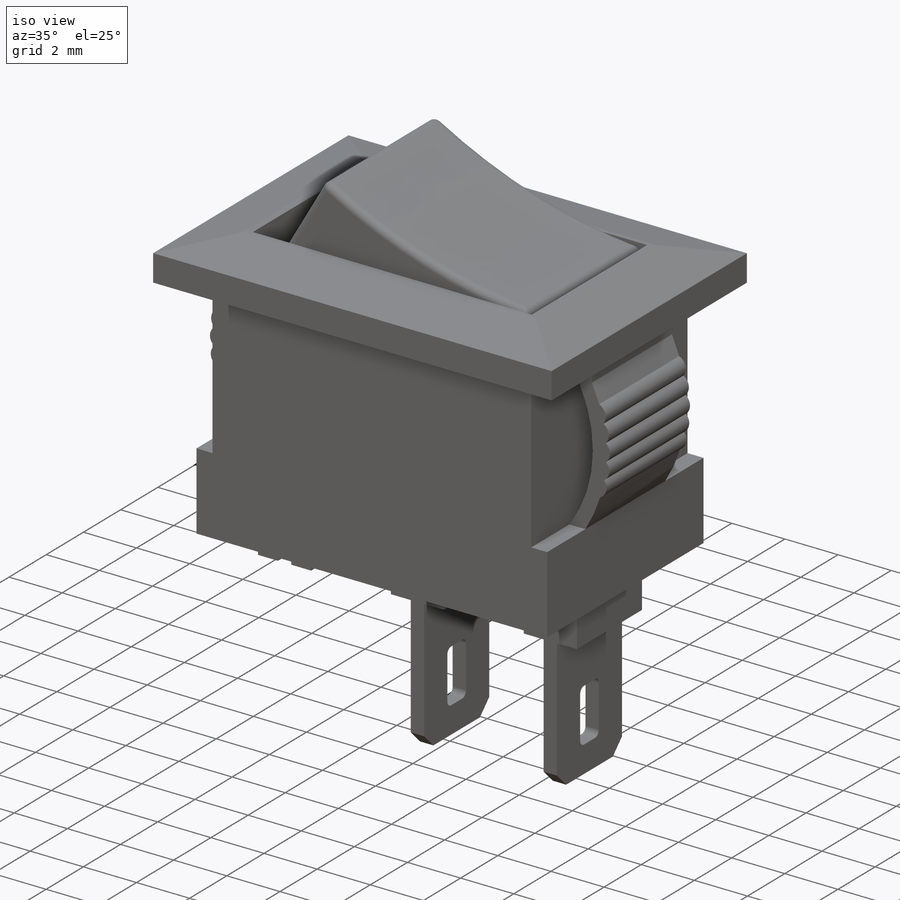
[diagram: iso view]
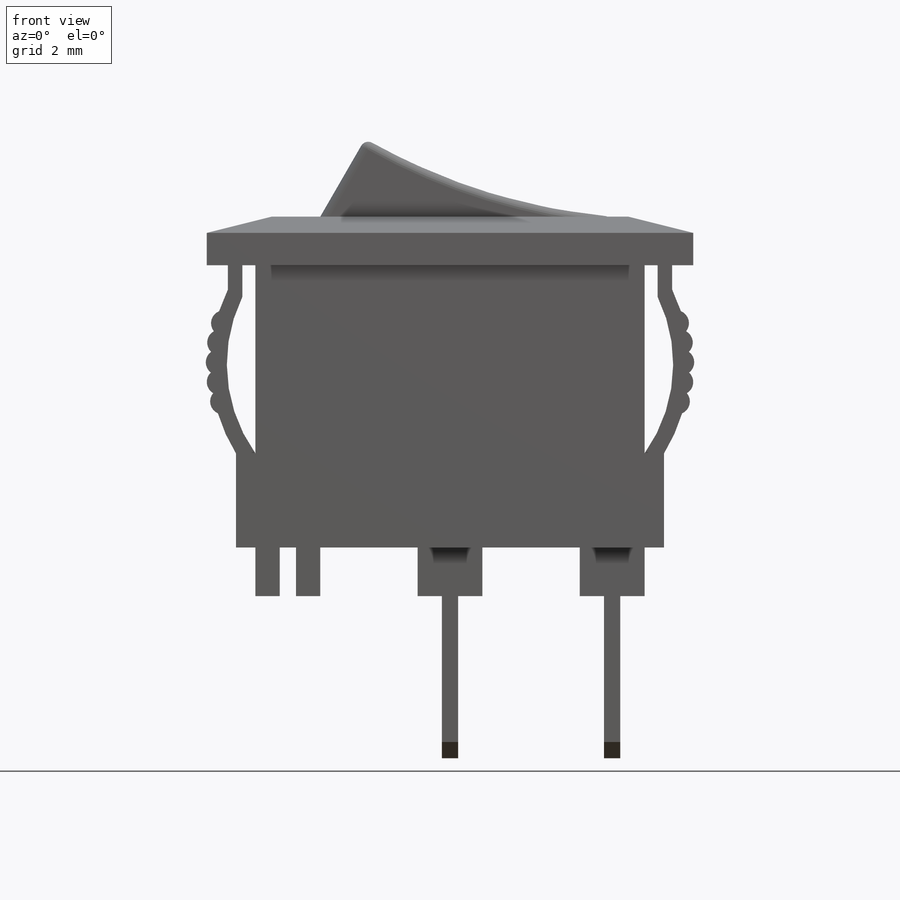
[diagram: front view]
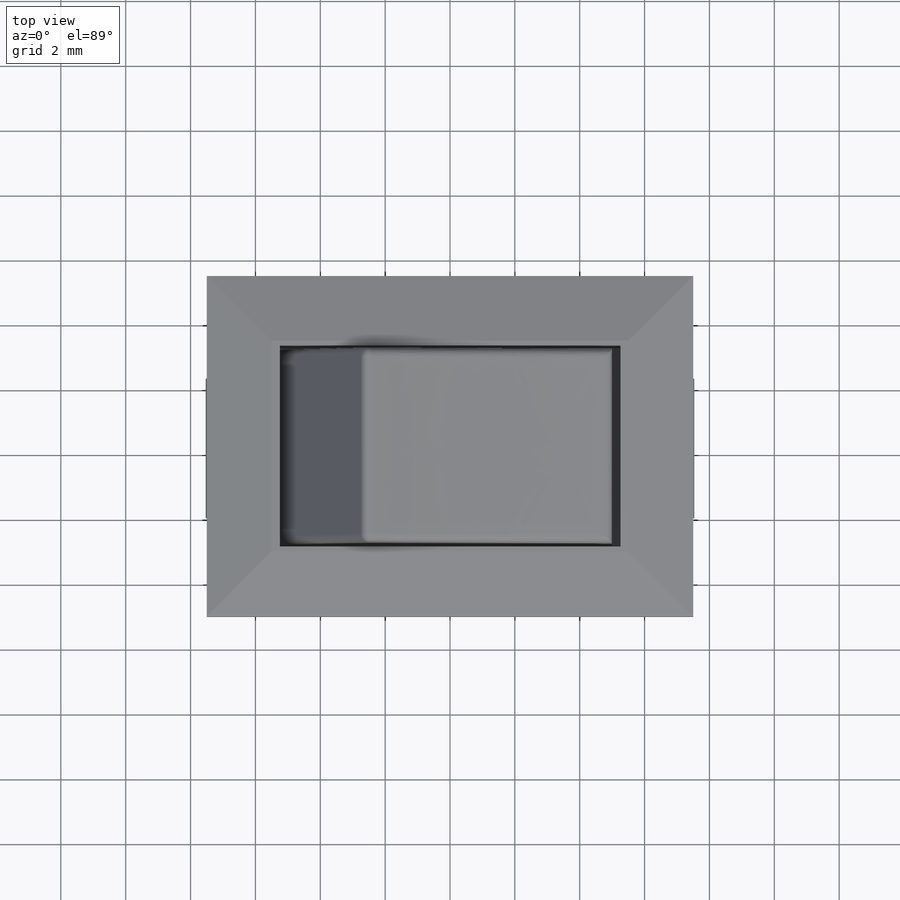
[diagram: top view]
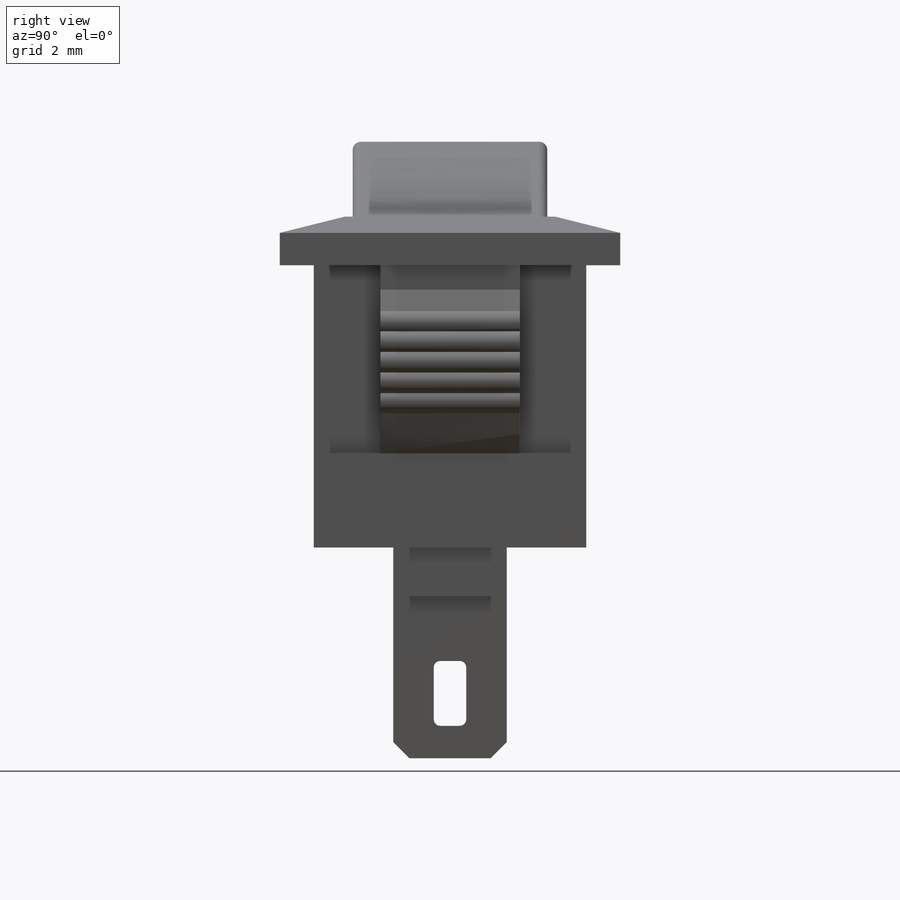
[diagram: right view]
SOLIDWORKS PART (.sldprt)
format: sldprt  version: not decoded by parser v0  size: 692,736 bytes
history: native  units: mm
features: sketch x15, extrude x8, plane x4, cut_extrude x4, mirror x2, pattern_linear x2, material x1, fillet x1, chamfer x1 (+10 scaffold rows collapsed; 1 parser-record rows omitted)
feature tree (49):
  scaffold x10  (default folders/planes/origin — collapsed)
  material  "ABS"
  plane  "Plano frontal"
  plane  "Plano superior"
  plane  "Plano direito"
  sketch  "Esboço1"  dims[D1=12.0mm D2=8.7mm]
  extrude  "Ressalto-extrusão1"  Depth=8.4mm
  sketch  "Esboço2"  dims[c1.D3=4.0mm c1.D6=0.4mm c1.D7=0.5mm c1.D1=13.2mm c1.D2=13.7mm c2.D3=14.5mm c2.D4=5.8mm c2.D5=0.75mm c2.D7=~4.885837mm c3.D3=0.5mm c3.D7=0.25mm]
  extrude  "Ressalto-extrusão2"  [1 undecoded]
  extrude  "Ressalto-extrusão3"  [1 undecoded]
  sketch  "Esboço2<3>"  dims[D1=4.3mm]
  mirror  "Espelhar1"
  sketch  "Esboço3"  dims[D1=15.0mm D2=10.5mm]
  extrude  "Ressalto-extrusão4"  Depth=1.5mm
  sketch  "Esboço7"  dims[D1=1.0mm D2=2.0mm]
  cut_extrude  "Corte-extrusão1"  [1 undecoded]
  sketch  "Esboço8"  dims[D1=2.0mm]
  cut_extrude  "Corte-extrusão2"  [1 undecoded]
  sketch  "Esboço9"  dims[D1=10.5mm D2=6.2mm D3=0.15mm]
  sketch  "Esboço10"  dims[c1.D1=1.5mm c1.D2=2.4mm c1.D3=2.4mm c2.D3=60.0deg c2.D4=0.5mm]
  extrude  "Ressalto-extrusão5"  Depth=3mm
  sketch  "Esboço16"  dims[c1.D1=0.5mm c1.D2=0.25mm c2.D1=0.0mm]
  cut_extrude  "Corte-extrusão4"  Depth=5mm
  fillet  "Filete1"  Radius=0.25mm
  parser-record x1  (decoder bookkeeping rows leaked as tree rows — omitted from the tree; the rows remain in map.json)
  sketch  "Esboço11"  dims[D1=3.5mm D2=2.0mm D3=0.5mm]
  extrude  "Ressalto-extrusão6"  Depth=1.5mm
  sketch  "Esboço12"  dims[D1=0.5mm]
  extrude  "Ressalto-extrusão7"  Depth=6.5mm
  sketch  "Esboço13"  dims[D4=0.2mm D1=1.0mm D2=2.0mm D3=1.0mm]
  cut_extrude  "Corte-extrusão3"  [1 undecoded]
  chamfer  "Chanfro1"  Distance=0.5mm Angle=45deg
  pattern_linear  "Padrão linear1"  Count1=2 Count2=1 Spacing1=5mm Spacing2=10mm
  pattern_linear  "Padrão linear2"  Count1=2 Count2=1 Spacing1=5mm Spacing2=10mm
  sketch  "Esboço15"
  mirror  "Linha de divisão8"
  sketch  "Esboço17"  dims[D1=0.0mm]
  extrude  "Ressalto-extrusão8"  [1 undecoded]
  plane  "Plano1"
  sketch  "Esboço14"  dims[c1.D4=~0.916175mm c1.D5=2.0mm c1.D1=~1.221567mm c2.D1=90.0deg c3.D1=0.5mm c3.D2=2.0mm c3.D3=1.0mm c3.D4=0.3mm c3.D6=2.0mm]
decode coverage: 24 of 33 modeling features carry decoded parameters
note: ~ marks probable driven/reference dimensions
note: 6 parameter values undecoded
summary: no parameter record found for 6 features
note: suppression state not decoded; provenance and decode notes live in map.json
